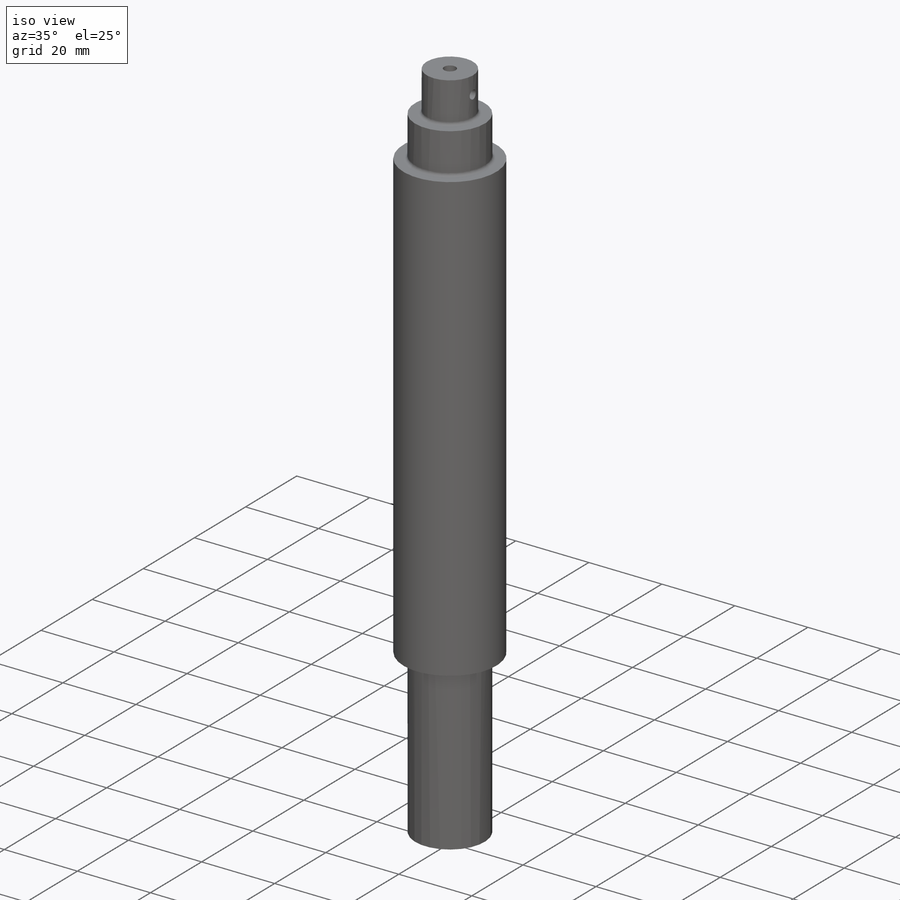
[diagram: iso view]
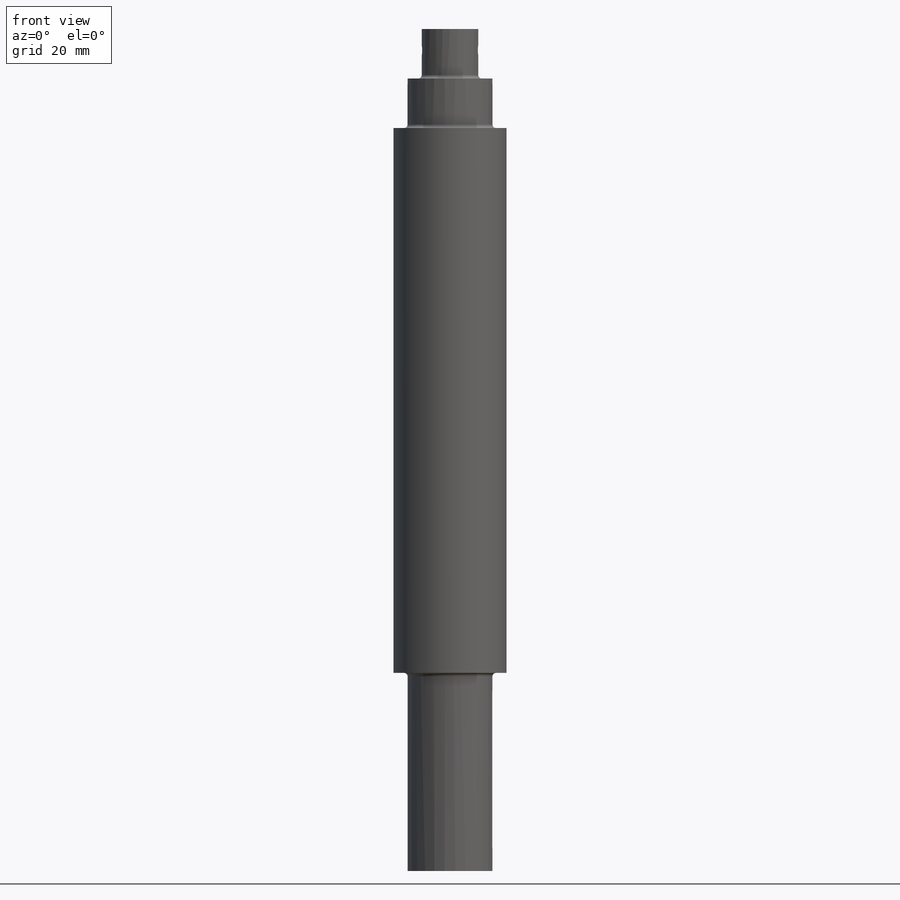
[diagram: front view]
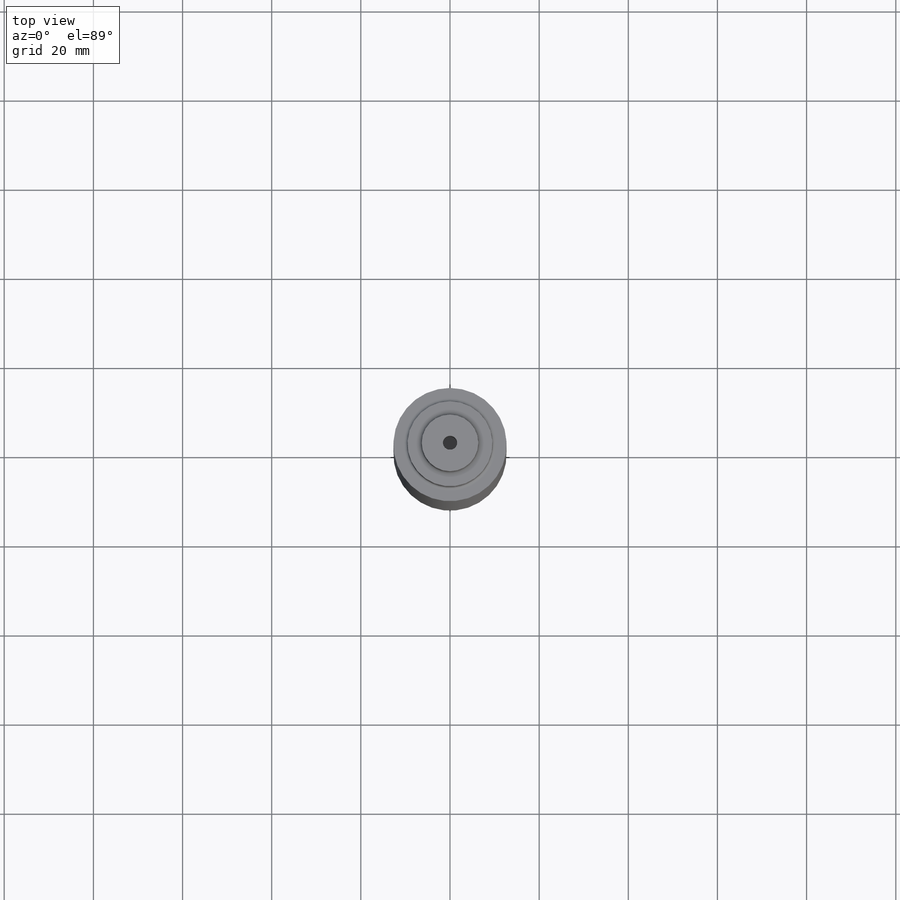
[diagram: top view]
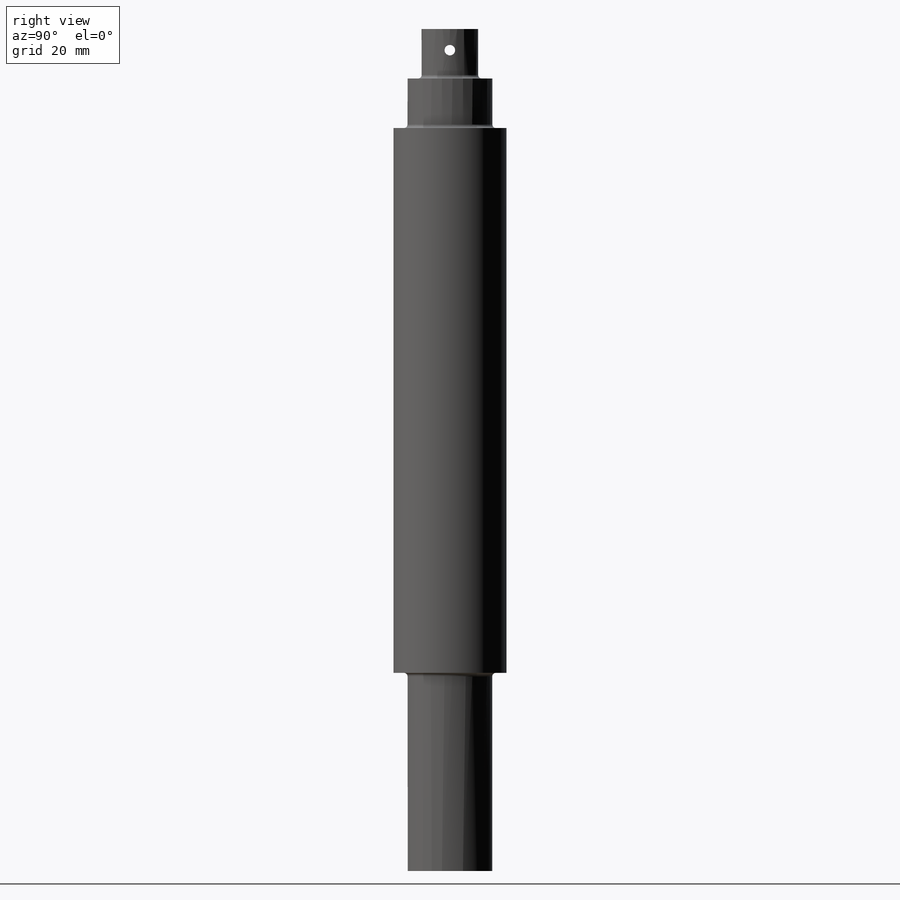
[diagram: right view]
SOLIDWORKS PART (.sldprt)
format: sldprt  version: not decoded by parser v0  size: 225,792 bytes
history: native  units: mm
features: sketch x3, cut_extrude x2, material x1, revolve x1 (+11 scaffold rows collapsed)
feature tree (18):
  scaffold x11  (default folders/planes/origin — collapsed)
  material  "ASTM A36 Steel"
  sketch  "Sketch1"  dims[c1.D2=~0.79375mm c1.D1=19.0754mm c1.D3=25.4mm c1.D4=11.1125mm c1.D5=152.4mm c2.D4=11.1125mm c2.D1=12.7mm c2.D3=19.0754mm c3.D4=25.4mm c3.D5=11.1125mm c3.D6=11.1125mm c3.D7=76.2mm c3.D8=19.0246mm c3.D9=44.45mm c4.D7=122.2375mm c4.D10=~2.36855mm]
  revolve  "Revolve1"  Angle=360deg
  sketch  "Sketch2"  dims[D1=3.2004mm]
  cut_extrude  "Cut-Extrude1"  Depth=12.7mm
  sketch  "Sketch3"  dims[D1=2.3622mm D2=6.35mm]
  cut_extrude  "Cut-Extrude2"  Depth=25.4mm
decode coverage: 6 of 6 modeling features carry decoded parameters
note: ~ marks probable driven/reference dimensions
note: suppression state not decoded; provenance and decode notes live in map.json
